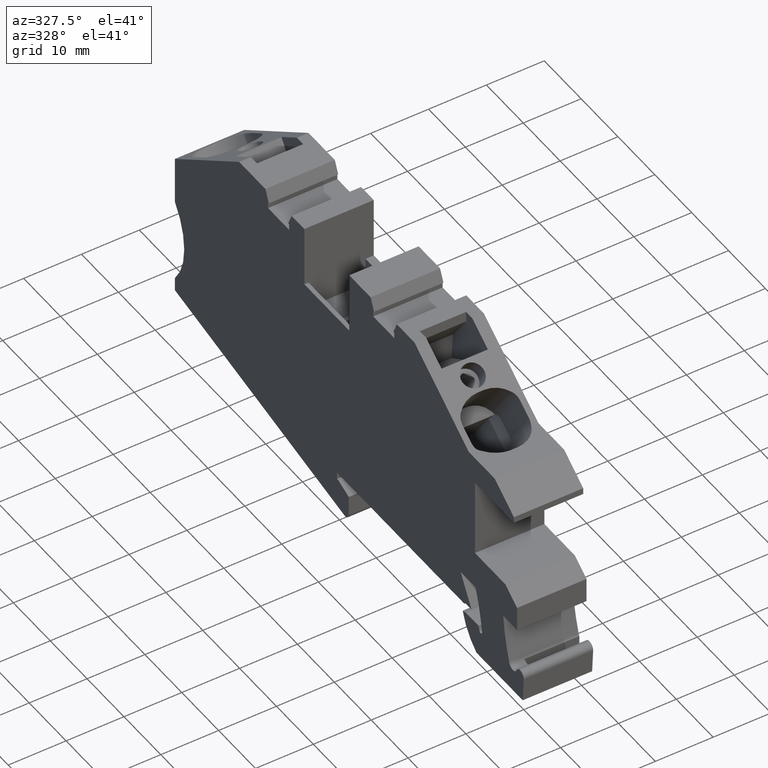
[diagram: clean part render]
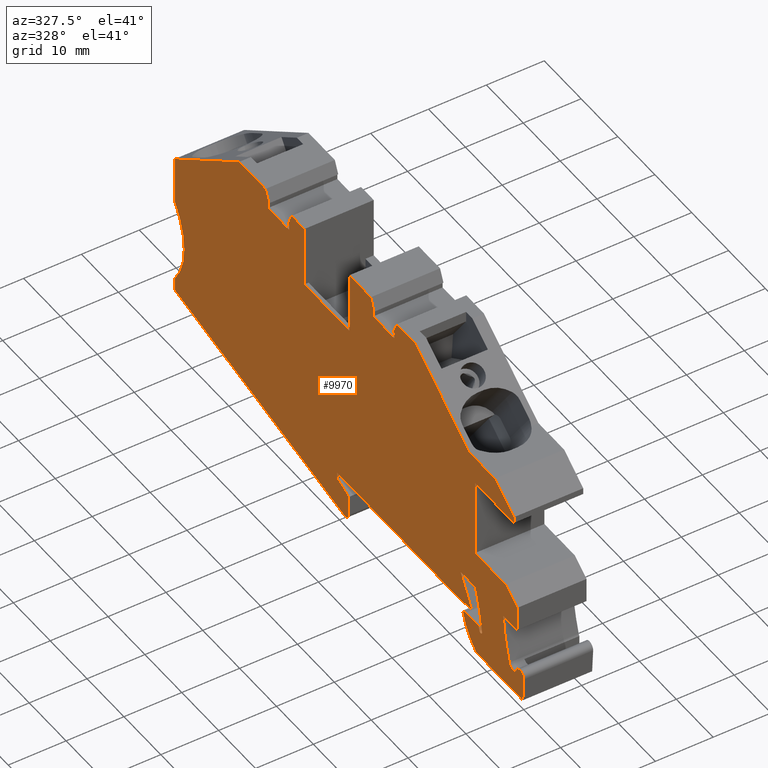
[diagram: same view with one face highlighted and labeled with its STEP entity id]
A machine part, auxiliary view. The second image highlights one B-rep face of the part: STEP entity #9970.
In plain terms, the highlighted planar face has unit normal (-1, -0, 0).
Its self-contained STEP definition (entity closure, byte-faithful):
#5150=CARTESIAN_POINT('',(38.203510143231,0.35328736142047,40.7));
#5160=DIRECTION('',(-8.51383783839635E-18,1.10420235744947E-16,-1.));
#5170=DIRECTION('',(-1.,8.35389237013017E-9,8.51383876083511E-18));
#5180=AXIS2_PLACEMENT_3D('',#5150,#5160,#5170);
#5190=PLANE('',#5180);
#5200=CARTESIAN_POINT('',(93.0449022402446,25.732308,40.7));
#5210=DIRECTION('',(8.35389237013017E-9,1.,1.10420235744946E-16));
#5220=VECTOR('',#5210,1.);
#5230=LINE('',#5200,#5220);
#5240=CARTESIAN_POINT('',(93.044902048957,2.83429066171187,40.7));
#5250=VERTEX_POINT('',#5240);
#5260=CARTESIAN_POINT('',(93.0449020682133,5.13936208983148,40.7));
#5270=VERTEX_POINT('',#5260);
#5280=EDGE_CURVE('',#5250,#5270,#5230,.T.);
#5290=ORIENTED_EDGE('',*,*,#5280,.F.);
#5300=CARTESIAN_POINT('',(102.498778289956,12.5301851051047,40.7));
#5310=DIRECTION('',(-8.51383783839635E-18,1.10420235744947E-16,-1.));
#5320=DIRECTION('',(-8.35389237013017E-9,-1.,-1.10420235673823E-16));
#5330=AXIS2_PLACEMENT_3D('',#5300,#5310,#5320);
#5340=CIRCLE('',#5330,12.);
#5350=CARTESIAN_POINT('',(93.0449021916976,19.9210028042074,40.7));
#5360=VERTEX_POINT('',#5350);
#5370=EDGE_CURVE('',#5270,#5360,#5340,.T.);
#5380=ORIENTED_EDGE('',*,*,#5370,.F.);
#5390=CARTESIAN_POINT('',(93.0449022402445,25.7323021918479,40.7));
#5400=DIRECTION('',(-8.35389248055041E-9,-1.,-1.10420235673823E-16));
#5410=VECTOR('',#5400,1.);
#5420=LINE('',#5390,#5410);
#5430=CARTESIAN_POINT('',(93.0449022606235,28.1717635470202,40.7));
#5440=VERTEX_POINT('',#5430);
#5450=EDGE_CURVE('',#5440,#5360,#5420,.T.);
#5460=ORIENTED_EDGE('',*,*,#5450,.T.);
#5470=CARTESIAN_POINT('',(59.0369233903868,51.9844071363389,40.7));
#5480=DIRECTION('',(-0.819152039478017,0.57357644322183,
7.84052243429085E-17));
#5490=VECTOR('',#5480,1.);
#5500=LINE('',#5470,#5490);
#5510=CARTESIAN_POINT('',(75.6008074156825,40.3862504727456,40.7));
#5520=VERTEX_POINT('',#5510);
#5530=EDGE_CURVE('',#5440,#5520,#5500,.T.);
#5540=ORIENTED_EDGE('',*,*,#5530,.F.);
#5550=CARTESIAN_POINT('',(59.036923293497,40.3862506111185,40.7));
#5560=DIRECTION('',(-1.,8.35389248055041E-9,8.51383876083512E-18));
#5570=VECTOR('',#5560,1.);
#5580=LINE('',#5550,#5570);
#5590=CARTESIAN_POINT('',(68.4677555117359,40.3862505323343,40.7));
#5600=VERTEX_POINT('',#5590);
#5610=EDGE_CURVE('',#5520,#5600,#5580,.T.);
#5620=ORIENTED_EDGE('',*,*,#5610,.F.);
#5630=CARTESIAN_POINT('',(61.9816675282634,25.7323024513468,40.7));
#5640=DIRECTION('',(-0.404742637322857,-0.914430641182227,
-7.74457874956567E-17));
#5650=VECTOR('',#5640,1.);
#5660=LINE('',#5630,#5650);
#5670=CARTESIAN_POINT('',(67.5384531054585,38.2866877068181,40.7));
#5680=VERTEX_POINT('',#5670);
#5690=EDGE_CURVE('',#5600,#5680,#5660,.T.);
#5700=ORIENTED_EDGE('',*,*,#5690,.F.);
#5710=CARTESIAN_POINT('',(59.0369232759575,38.286687777839,40.7));
#5720=DIRECTION('',(-1.,8.35388754622585E-9,8.51383876083461E-18));
#5730=VECTOR('',#5720,1.);
#5740=LINE('',#5710,#5730);
#5750=CARTESIAN_POINT('',(67.7702553451225,38.2866877048817,40.7));
#5760=VERTEX_POINT('',#5750);
#5770=EDGE_CURVE('',#5760,#5680,#5740,.T.);
#5780=ORIENTED_EDGE('',*,*,#5770,.T.);
#5790=CARTESIAN_POINT('',(67.7702552402446,25.7323024029895,40.7));
#5800=DIRECTION('',(-8.35389248055041E-9,-1.,-1.10420235673823E-16));
#5810=VECTOR('',#5800,1.);
#5820=LINE('',#5790,#5810);
#5830=CARTESIAN_POINT('',(67.7702553361384,37.2112501981611,40.7));
#5840=VERTEX_POINT('',#5830);
#5850=EDGE_CURVE('',#5760,#5840,#5820,.T.);
#5860=ORIENTED_EDGE('',*,*,#5850,.F.);
#5870=CARTESIAN_POINT('',(59.0369232669734,37.2112502711185,40.7));
#5880=DIRECTION('',(1.,-8.35389248055041E-9,-8.51383876083512E-18));
#5890=VECTOR('',#5880,1.);
#5900=LINE('',#5870,#5890);
#5910=CARTESIAN_POINT('',(62.0452553361384,37.2112502459872,40.7));
#5920=VERTEX_POINT('',#5910);
#5930=EDGE_CURVE('',#5920,#5840,#5900,.T.);
#5940=ORIENTED_EDGE('',*,*,#5930,.T.);
#5950=CARTESIAN_POINT('',(62.0452552402445,25.7323024508156,40.7));
#5960=DIRECTION('',(-8.35389248055041E-9,-1.,-1.10420235673823E-16));
#5970=VECTOR('',#5960,1.);
#5980=LINE('',#5950,#5970);
#5990=CARTESIAN_POINT('',(62.0452553451225,38.2866877527077,40.7));
#6000=VERTEX_POINT('',#5990);
#6010=EDGE_CURVE('',#6000,#5920,#5980,.T.);
#6020=ORIENTED_EDGE('',*,*,#6010,.T.);
#6030=CARTESIAN_POINT('',(59.0369232759575,38.286687777839,40.7));
#6040=DIRECTION('',(-1.,8.35389618129382E-9,8.51383876083564E-18));
#6050=VECTOR('',#6040,1.);
#6060=LINE('',#6030,#6050);
#6070=CARTESIAN_POINT('',(62.2770575894561,38.2866877507713,40.7));
#6080=VERTEX_POINT('',#6070);
#6090=EDGE_CURVE('',#6080,#6000,#6060,.T.);
#6100=ORIENTED_EDGE('',*,*,#6090,.T.);
#6110=CARTESIAN_POINT('',(67.8338429568952,25.7323024024583,40.7));
#6120=DIRECTION('',(-0.404742622044746,0.91443064794458,
5.65820388575564E-17));
#6130=VECTOR('',#6120,1.);
#6140=LINE('',#6110,#6130);
#6150=CARTESIAN_POINT('',(61.3477552182577,40.386250591814,40.7));
#6160=VERTEX_POINT('',#6150);
#6170=EDGE_CURVE('',#6080,#6160,#6140,.T.);
#6180=ORIENTED_EDGE('',*,*,#6170,.F.);
#6190=CARTESIAN_POINT('',(59.036923293497,40.3862506111185,40.7));
#6200=DIRECTION('',(-1.,8.35389248055041E-9,8.51383876083512E-18));
#6210=VECTOR('',#6200,1.);
#6220=LINE('',#6190,#6210);
#6230=CARTESIAN_POINT('',(57.9077553626642,40.3862506205514,40.7));
#6240=VERTEX_POINT('',#6230);
#6250=EDGE_CURVE('',#6160,#6240,#6220,.T.);
#6260=ORIENTED_EDGE('',*,*,#6250,.F.);
#6270=CARTESIAN_POINT('',(57.9077552402467,25.7323024853798,40.7));
#6280=DIRECTION('',(-8.35389248055041E-9,-1.,-1.10420235673823E-16));
#6290=VECTOR('',#6280,1.);
#6300=LINE('',#6270,#6290);
#6310=CARTESIAN_POINT('',(57.9077552734199,29.7032849309477,40.7));
#6320=VERTEX_POINT('',#6310);
#6330=EDGE_CURVE('',#6240,#6320,#6300,.T.);
#6340=ORIENTED_EDGE('',*,*,#6330,.F.);
#6350=CARTESIAN_POINT('',(59.0369232042527,29.7032849215148,40.7));
#6360=DIRECTION('',(-1.,8.35389248055041E-9,8.51383876083512E-18));
#6370=VECTOR('',#6360,1.);
#6380=LINE('',#6350,#6370);
#6390=CARTESIAN_POINT('',(45.7077552734199,29.7032850328652,40.7));
#6400=VERTEX_POINT('',#6390);
#6410=EDGE_CURVE('',#6320,#6400,#6380,.T.);
#6420=ORIENTED_EDGE('',*,*,#6410,.F.);
#6430=CARTESIAN_POINT('',(45.7077552402467,25.7323025872973,40.7));
#6440=DIRECTION('',(-8.35389248055041E-9,-1.,-1.10420235673823E-16));
#6450=VECTOR('',#6440,1.);
#6460=LINE('',#6430,#6450);
#6470=CARTESIAN_POINT('',(45.7077553626954,40.38998509679,40.7));
#6480=VERTEX_POINT('',#6470);
#6490=EDGE_CURVE('',#6480,#6400,#6460,.T.);
#6500=ORIENTED_EDGE('',*,*,#6490,.T.);
#6510=CARTESIAN_POINT('',(59.036923293553,40.39295746486,40.7));
#6520=DIRECTION('',(-0.99999997513611,-0.00022299726521536,
8.48054384528818E-18));
#6530=VECTOR('',#6520,1.);
#6540=LINE('',#6510,#6530);
#6550=CARTESIAN_POINT('',(39.9173812333129,40.3886938591624,40.7));
#6560=VERTEX_POINT('',#6550);
#6570=EDGE_CURVE('',#6480,#6560,#6540,.T.);
#6580=ORIENTED_EDGE('',*,*,#6570,.F.);
#6590=CARTESIAN_POINT('',(33.4302118971798,25.7323026898626,40.7));
#6600=DIRECTION('',(-0.404742637322857,-0.914430641182227,
-7.74457874956567E-17));
#6610=VECTOR('',#6600,1.);
#6620=LINE('',#6590,#6610);
#6630=CARTESIAN_POINT('',(38.9869974743749,38.2866879453339,40.7));
#6640=VERTEX_POINT('',#6630);
#6650=EDGE_CURVE('',#6560,#6640,#6620,.T.);
#6660=ORIENTED_EDGE('',*,*,#6650,.F.);
#6670=CARTESIAN_POINT('',(59.0369232759575,38.2866877778389,40.7));
#6680=DIRECTION('',(-1.,8.35389614314183E-9,8.51383876083564E-18));
#6690=VECTOR('',#6680,1.);
#6700=LINE('',#6670,#6690);
#6710=CARTESIAN_POINT('',(39.2202553481225,38.2866879433853,40.7));
#6720=VERTEX_POINT('',#6710);
#6730=EDGE_CURVE('',#6720,#6640,#6700,.T.);
#6740=ORIENTED_EDGE('',*,*,#6730,.T.);
#6750=CARTESIAN_POINT('',(39.2202552432446,25.7323026414932,40.7));
#6760=DIRECTION('',(-8.35389248055041E-9,-1.,-1.10420235673823E-16));
#6770=VECTOR('',#6760,1.);
#6780=LINE('',#6750,#6770);
#6790=CARTESIAN_POINT('',(39.2202553391659,37.2145391366648,40.7));
#6800=VERTEX_POINT('',#6790);
#6810=EDGE_CURVE('',#6720,#6800,#6780,.T.);
#6820=ORIENTED_EDGE('',*,*,#6810,.F.);
#6830=CARTESIAN_POINT('',(59.0369232670009,37.2145389711185,40.7));
#6840=DIRECTION('',(1.,-8.35389248055041E-9,-8.51383876083512E-18));
#6850=VECTOR('',#6840,1.);
#6860=LINE('',#6830,#6850);
#6870=CARTESIAN_POINT('',(33.4952553391659,37.2145391844908,40.7));
#6880=VERTEX_POINT('',#6870);
#6890=EDGE_CURVE('',#6880,#6800,#6860,.T.);
#6900=ORIENTED_EDGE('',*,*,#6890,.T.);
#6910=CARTESIAN_POINT('',(33.4952552432445,25.7323026893192,40.7));
#6920=DIRECTION('',(-8.35389248055041E-9,-1.,-1.10420235673823E-16));
#6930=VECTOR('',#6920,1.);
#6940=LINE('',#6910,#6930);
#6950=CARTESIAN_POINT('',(33.4952553481225,38.2866879912114,40.7));
#6960=VERTEX_POINT('',#6950);
#6970=EDGE_CURVE('',#6960,#6880,#6940,.T.);
#6980=ORIENTED_EDGE('',*,*,#6970,.T.);
#6990=CARTESIAN_POINT('',(59.0369232759575,38.2866877778391,40.7));
#7000=DIRECTION('',(-1.,8.35388892783673E-9,8.51383876083485E-18));
#7010=VECTOR('',#7000,1.);
#7020=LINE('',#6990,#7010);
#7030=CARTESIAN_POINT('',(33.7285132201678,38.2866879892628,40.7));
#7040=VERTEX_POINT('',#7030);
#7050=EDGE_CURVE('',#7040,#6960,#7020,.T.);
#7060=ORIENTED_EDGE('',*,*,#7050,.T.);
#7070=CARTESIAN_POINT('',(39.2852985876069,25.7323026409498,40.7));
#7080=DIRECTION('',(-0.404742622044747,0.91443064794458,
8.43376144731853E-17));
#7090=VECTOR('',#7080,1.);
#7100=LINE('',#7070,#7090);
#7110=CARTESIAN_POINT('',(32.7988321405574,40.387106442143,40.7));
#7120=VERTEX_POINT('',#7110);
#7130=EDGE_CURVE('',#7040,#7120,#7100,.T.);
#7140=ORIENTED_EDGE('',*,*,#7130,.F.);
#7150=CARTESIAN_POINT('',(59.036923293553,40.39295746486,40.7));
#7160=DIRECTION('',(-0.99999997513611,-0.000222997265215238,
8.48054384528818E-18));
#7170=VECTOR('',#7160,1.);
#7180=LINE('',#7150,#7170);
#7190=CARTESIAN_POINT('',(28.014402209536,40.3860395273262,40.7));
#7200=VERTEX_POINT('',#7190);
#7210=EDGE_CURVE('',#7120,#7200,#7180,.T.);
#7220=ORIENTED_EDGE('',*,*,#7210,.F.);
#7230=CARTESIAN_POINT('',(59.0369234749602,62.1082423869873,40.7));
#7240=DIRECTION('',(-0.819152049061208,-0.573576429535615,
-9.22125431074975E-17));
#7250=VECTOR('',#7240,1.);
#7260=LINE('',#7230,#7250);
#7270=CARTESIAN_POINT('',(13.2576992566291,30.0532850635532,40.7));
#7280=VERTEX_POINT('',#7270);
#7290=EDGE_CURVE('',#7200,#7280,#7260,.T.);
#7300=ORIENTED_EDGE('',*,*,#7290,.F.);
#7310=CARTESIAN_POINT('',(59.0369232071765,30.0532846811185,40.7));
#7320=DIRECTION('',(-1.,8.35389248055041E-9,8.51383876083512E-18));
#7330=VECTOR('',#7320,1.);
#7340=LINE('',#7310,#7330);
#7350=CARTESIAN_POINT('',(6.25893621264501,30.0532851220201,40.7));
#7360=VERTEX_POINT('',#7350);
#7370=EDGE_CURVE('',#7280,#7360,#7340,.T.);
#7380=ORIENTED_EDGE('',*,*,#7370,.F.);
#7390=CARTESIAN_POINT('',(59.0369235158992,67.0088283677211,40.7));
#7400=DIRECTION('',(-0.819152053882617,-0.573576422649929,
-9.22125428753326E-17));
#7410=VECTOR('',#7400,1.);
#7420=LINE('',#7390,#7410);
#7430=CARTESIAN_POINT('',(1.04490266709101,26.4023796589128,40.7));
#7440=VERTEX_POINT('',#7430);
#7450=EDGE_CURVE('',#7360,#7440,#7420,.T.);
#7460=ORIENTED_EDGE('',*,*,#7450,.F.);
#7470=CARTESIAN_POINT('',(1.04490266149283,25.732302960406,40.7));
#7480=DIRECTION('',(-8.35463096732498E-9,-1.,-1.10420235673788E-16));
#7490=VECTOR('',#7480,1.);
#7500=LINE('',#7470,#7490);
#7510=CARTESIAN_POINT('',(1.04490265790852,25.3032857555777,40.7));
#7520=VERTEX_POINT('',#7510);
#7530=EDGE_CURVE('',#7440,#7520,#7500,.T.);
#7540=ORIENTED_EDGE('',*,*,#7530,.F.);
#7550=CARTESIAN_POINT('',(59.0369231674955,25.3032852711179,40.7));
#7560=DIRECTION('',(1.,-8.35390378512144E-9,-8.51383876083624E-18));
#7570=VECTOR('',#7560,1.);
#7580=LINE('',#7550,#7570);
#7590=CARTESIAN_POINT('',(11.6016160166606,25.3032856673879,40.7));
#7600=VERTEX_POINT('',#7590);
#7610=EDGE_CURVE('',#7520,#7600,#7580,.T.);
#7620=ORIENTED_EDGE('',*,*,#7610,.F.);
#7630=CARTESIAN_POINT('',(11.6016160202445,25.7323028722163,40.7));
#7640=DIRECTION('',(-8.35389248055041E-9,-1.,-1.10420235673823E-16));
#7650=VECTOR('',#7640,1.);
#7660=LINE('',#7630,#7650);
#7670=CARTESIAN_POINT('',(11.60161590344,11.7502576173879,40.7));
#7680=VERTEX_POINT('',#7670);
#7690=EDGE_CURVE('',#7600,#7680,#7660,.T.);
#7700=ORIENTED_EDGE('',*,*,#7690,.F.);
#7710=CARTESIAN_POINT('',(59.036923054275,11.7502572211185,40.7));
#7720=DIRECTION('',(-1.,8.35389248055041E-9,8.51383876083512E-18));
#7730=VECTOR('',#7720,1.);
#7740=LINE('',#7710,#7730);
#7750=CARTESIAN_POINT('',(3.33903798081744,11.7502576864126,40.7));
#7760=VERTEX_POINT('',#7750);
#7770=EDGE_CURVE('',#7680,#7760,#7740,.T.);
#7780=ORIENTED_EDGE('',*,*,#7770,.F.);
#7790=CARTESIAN_POINT('',(59.0369233800775,50.750336214696,40.7));
#7800=DIRECTION('',(-0.819152049061208,-0.573576429535615,
-9.22125431074975E-17));
#7810=VECTOR('',#7800,1.);
#7820=LINE('',#7790,#7810);
#7830=CARTESIAN_POINT('',(0.163827634866756,9.52695150614708,40.7));
#7840=VERTEX_POINT('',#7830);
#7850=EDGE_CURVE('',#7760,#7840,#7820,.T.);
#7860=ORIENTED_EDGE('',*,*,#7850,.F.);
#7870=CARTESIAN_POINT('',(0.163827770244545,25.7323029677664,40.7));
#7880=DIRECTION('',(-8.35389248055041E-9,-1.,-1.10420235673823E-16));
#7890=VECTOR('',#7880,1.);
#7900=LINE('',#7870,#7890);
#7910=CARTESIAN_POINT('',(0.163827599165053,5.25328790999988,40.7));
#7920=VERTEX_POINT('',#7910);
#7930=EDGE_CURVE('',#7840,#7920,#7900,.T.);
#7940=ORIENTED_EDGE('',*,*,#7930,.F.);
#7950=CARTESIAN_POINT('',(59.036923,5.25328741818037,40.7));
#7960=DIRECTION('',(1.,-8.35389237013017E-9,-8.51383876083512E-18));
#7970=VECTOR('',#7960,1.);
#7980=LINE('',#7950,#7970);
#7990=CARTESIAN_POINT('',(3.94644420618581,5.25328787840031,40.7));
#8000=VERTEX_POINT('',#7990);
#8010=EDGE_CURVE('',#7920,#8000,#7980,.T.);
#8020=ORIENTED_EDGE('',*,*,#8010,.F.);
#8030=CARTESIAN_POINT('',(-32.3049932514707,8.77026705724427,40.7));
#8040=DIRECTION('',(-8.51383783839635E-18,1.10420235744947E-16,-1.));
#8050=DIRECTION('',(-8.35389237013017E-9,-1.,-1.10420235673823E-16));
#8060=AXIS2_PLACEMENT_3D('',#8030,#8040,#8050);
#8070=CIRCLE('',#8060,36.4216400000165);
#8080=CARTESIAN_POINT('',(2.29555040933133,-2.60243001371195,40.7));
#8090=VERTEX_POINT('',#8080);
#8100=EDGE_CURVE('',#8000,#8090,#8070,.T.);
#8110=ORIENTED_EDGE('',*,*,#8100,.F.);
#8120=CARTESIAN_POINT('',(1.30650513625136,-2.27777433654591,40.7));
#8130=DIRECTION('',(-8.51383783839635E-18,1.10420235744947E-16,-1.));
#8140=DIRECTION('',(-8.35389237013017E-9,-1.,-1.10420235673823E-16));
#8150=AXIS2_PLACEMENT_3D('',#8120,#8130,#8140);
#8160=CIRCLE('',#8150,1.04096678600002);
#8170=CARTESIAN_POINT('',(0.317412838951839,-2.60228670078863,40.7));
#8180=VERTEX_POINT('',#8170);
#8190=EDGE_CURVE('',#8090,#8180,#8160,.T.);
#8200=ORIENTED_EDGE('',*,*,#8190,.F.);
#8210=CARTESIAN_POINT('',(-0.632754159063829,-2.91402806134557,40.7));
#8220=DIRECTION('',(8.51383783839635E-18,-1.10420235744947E-16,1.));
#8230=DIRECTION('',(8.35389237013017E-9,1.,1.10420235673823E-16));
#8240=AXIS2_PLACEMENT_3D('',#8210,#8220,#8230);
#8250=CIRCLE('',#8240,1.);
#8260=CARTESIAN_POINT('',(-1.63058215358199,-2.97990137427176,40.7));
#8270=VERTEX_POINT('',#8260);
#8280=EDGE_CURVE('',#8180,#8270,#8250,.T.);
#8290=ORIENTED_EDGE('',*,*,#8280,.F.);
#8300=CARTESIAN_POINT('',(-3.52606715370311,25.7323029985914,40.7));
#8310=DIRECTION('',(0.0658733121853598,-0.997827994567065,
-1.11522852946274E-16));
#8320=VECTOR('',#8310,1.);
#8330=LINE('',#8300,#8320);
#8340=CARTESIAN_POINT('',(-1.35220201571465,-7.19671512933542,40.7));
#8350=VERTEX_POINT('',#8340);
#8360=EDGE_CURVE('',#8270,#8350,#8330,.T.);
#8370=ORIENTED_EDGE('',*,*,#8360,.F.);
#8380=CARTESIAN_POINT('',(59.036922895994,-7.19671563381963,40.7));
#8390=DIRECTION('',(1.,-8.35389237013017E-9,-8.51383876083512E-18));
#8400=VECTOR('',#8390,1.);
#8410=LINE('',#8380,#8400);
#8420=CARTESIAN_POINT('',(11.2163273523498,-7.19671523433152,40.7));
#8430=VERTEX_POINT('',#8420);
#8440=EDGE_CURVE('',#8350,#8430,#8410,.T.);
#8450=ORIENTED_EDGE('',*,*,#8440,.F.);
#8460=CARTESIAN_POINT('',(5.24019420293919,0.916888865592497,40.7));
#8470=DIRECTION('',(8.51383783839635E-18,-1.10420235744947E-16,1.));
#8480=DIRECTION('',(8.35389237013017E-9,1.,1.10420235673823E-16));
#8490=AXIS2_PLACEMENT_3D('',#8460,#8470,#8480);
#8500=CIRCLE('',#8490,10.0769409500001);
#8510=CARTESIAN_POINT('',(14.9362108230489,-1.82756018883433,40.7));
#8520=VERTEX_POINT('',#8510);
#8530=EDGE_CURVE('',#8430,#8520,#8500,.T.);
#8540=ORIENTED_EDGE('',*,*,#8530,.F.);
#8550=CARTESIAN_POINT('',(59.0369228421315,-13.6443107545996,40.7));
#8560=DIRECTION('',(-0.965925824128284,0.258819053166676,
4.31629841739158E-17));
#8570=VECTOR('',#8560,1.);
#8580=LINE('',#8550,#8570);
#8590=CARTESIAN_POINT('',(14.0746744518402,-1.59671220620984,40.7));
#8600=VERTEX_POINT('',#8590);
#8610=EDGE_CURVE('',#8520,#8600,#8580,.T.);
#8620=ORIENTED_EDGE('',*,*,#8610,.F.);
#8630=CARTESIAN_POINT('',(59.0369229427758,-1.59671258181963,40.7));
#8640=DIRECTION('',(-1.,8.35389237013017E-9,8.51383876083512E-18));
#8650=VECTOR('',#8640,1.);
#8660=LINE('',#8630,#8650);
#8670=CARTESIAN_POINT('',(10.634409433341,-1.59671217747024,40.7));
#8680=VERTEX_POINT('',#8670);
#8690=EDGE_CURVE('',#8600,#8680,#8660,.T.);
#8700=ORIENTED_EDGE('',*,*,#8690,.F.);
#8710=CARTESIAN_POINT('',(-22.8734298446946,8.51391129479872,40.7));
#8720=DIRECTION('',(-8.51383783839635E-18,1.10420235744947E-16,-1.));
#8730=DIRECTION('',(-8.35389237013017E-9,-1.,-1.10420235673823E-16));
#8740=AXIS2_PLACEMENT_3D('',#8710,#8720,#8730);
#8750=CIRCLE('',#8740,35.0000000011523);
#8760=CARTESIAN_POINT('',(10.4017826878011,-2.33782732886977,40.7));
#8770=VERTEX_POINT('',#8760);
#8780=EDGE_CURVE('',#8680,#8770,#8750,.T.);
#8790=ORIENTED_EDGE('',*,*,#8780,.F.);
#8800=CARTESIAN_POINT('',(10.0450510767216,-2.22148973354679,40.7));
#8810=DIRECTION('',(-8.51383783839635E-18,1.10420235744947E-16,-1.));
#8820=DIRECTION('',(-8.35389237013017E-9,-1.,-1.10420235673823E-16));
#8830=AXIS2_PLACEMENT_3D('',#8800,#8810,#8820);
#8840=CIRCLE('',#8830,0.375222438600003);
#8850=CARTESIAN_POINT('',(9.6728471566905,-2.17399109838285,40.7));
#8860=VERTEX_POINT('',#8850);
#8870=EDGE_CURVE('',#8770,#8860,#8840,.T.);
#8880=ORIENTED_EDGE('',*,*,#8870,.F.);
#8890=CARTESIAN_POINT('',(44.3912857611087,-6.60456903247223,40.7));
#8900=DIRECTION('',(-8.51383783839635E-18,1.10420235744947E-16,-1.));
#8910=DIRECTION('',(-8.35389237013017E-9,-1.,-1.10420235673823E-16));
#8920=AXIS2_PLACEMENT_3D('',#8890,#8900,#8910);
#8930=CIRCLE('',#8920,35.000000000003);
#8940=CARTESIAN_POINT('',(11.4611695631674,5.2532320786231,40.7));
#8950=VERTEX_POINT('',#8940);
#8960=EDGE_CURVE('',#8860,#8950,#8930,.T.);
#8970=ORIENTED_EDGE('',*,*,#8960,.F.);
#8980=CARTESIAN_POINT('',(59.0369229999995,5.25323168118037,40.7));
#8990=DIRECTION('',(1.,-8.35389237013017E-9,-8.51383876083512E-18));
#9000=VECTOR('',#8990,1.);
#9010=LINE('',#8980,#9000);
#9020=CARTESIAN_POINT('',(15.5013167428285,5.25323204487214,40.7));
#9030=VERTEX_POINT('',#9020);
#9040=EDGE_CURVE('',#8950,#9030,#9010,.T.);
#9050=ORIENTED_EDGE('',*,*,#9040,.F.);
#9060=CARTESIAN_POINT('',(27.3249139498078,25.7323027408656,40.7));
#9070=DIRECTION('',(-0.500000007227945,-0.866025399611383,
-7.52912662383961E-17));
#9080=VECTOR('',#9070,1.);
#9090=LINE('',#9060,#9080);
#9100=CARTESIAN_POINT('',(12.5568625071819,0.153287806469791,40.7));
#9110=VERTEX_POINT('',#9100);
#9120=EDGE_CURVE('',#9030,#9110,#9090,.T.);
#9130=ORIENTED_EDGE('',*,*,#9120,.F.);
#9140=CARTESIAN_POINT('',(59.0369229573951,0.153287418180369,40.7));
#9150=DIRECTION('',(1.,-8.35389237013017E-9,-8.51383876083512E-18));
#9160=VECTOR('',#9150,1.);
#9170=LINE('',#9140,#9160);
#9180=CARTESIAN_POINT('',(14.0949012665602,0.153287793621182,40.7));
#9190=VERTEX_POINT('',#9180);
#9200=EDGE_CURVE('',#9110,#9190,#9170,.T.);
#9210=ORIENTED_EDGE('',*,*,#9200,.F.);
#9220=CARTESIAN_POINT('',(14.094902024054,-0.146712206378844,40.7));
#9230=DIRECTION('',(-8.51383783839635E-18,1.10420235744947E-16,-1.));
#9240=DIRECTION('',(-8.35389237013017E-9,-1.,-1.10420235673823E-16));
#9250=AXIS2_PLACEMENT_3D('',#9220,#9230,#9240);
#9260=CIRCLE('',#9250,0.300000000000023);
#9270=CARTESIAN_POINT('',(14.354709495493,0.00328806085812516,40.7));
#9280=VERTEX_POINT('',#9270);
#9290=EDGE_CURVE('',#9190,#9280,#9260,.T.);
#9300=ORIENTED_EDGE('',*,*,#9290,.F.);
#9310=CARTESIAN_POINT('',(14.6145174065602,0.153287558680343,40.7));
#9320=DIRECTION('',(8.51383783839635E-18,-1.10420235744947E-16,1.));
#9330=DIRECTION('',(8.35389237013017E-9,1.,1.10420235673823E-16));
#9340=AXIS2_PLACEMENT_3D('',#9310,#9320,#9330);
#9350=CIRCLE('',#9340,0.29999999999997);
#9360=CARTESIAN_POINT('',(14.614517404054,-0.146712441319632,40.7));
#9370=VERTEX_POINT('',#9360);
#9380=EDGE_CURVE('',#9280,#9370,#9350,.T.);
#9390=ORIENTED_EDGE('',*,*,#9380,.F.);
#9400=CARTESIAN_POINT('',(36.244902024054,-0.146712622017539,40.7));
#9410=DIRECTION('',(1.,-8.35389237013017E-9,-8.51383876083511E-18));
#9420=VECTOR('',#9410,1.);
#9430=LINE('',#9400,#9420);
#9440=CARTESIAN_POINT('',(49.044900084054,-0.146712728947342,40.7));
#9450=VERTEX_POINT('',#9440);
#9460=EDGE_CURVE('',#9370,#9450,#9430,.T.);
#9470=ORIENTED_EDGE('',*,*,#9460,.F.);
#9480=CARTESIAN_POINT('',(49.0449000815479,-0.446712498347342,40.7));
#9490=DIRECTION('',(-8.35389237013017E-9,-1.,-1.10420235673823E-16));
#9500=VECTOR('',#9490,1.);
#9510=LINE('',#9480,#9500);
#9520=CARTESIAN_POINT('',(49.0449000737787,-1.37671555014735,40.7));
#9530=VERTEX_POINT('',#9520);
#9540=EDGE_CURVE('',#9450,#9530,#9510,.T.);
#9550=ORIENTED_EDGE('',*,*,#9540,.F.);
#9560=CARTESIAN_POINT('',(36.2449020137787,-1.37671544321754,40.7));
#9570=DIRECTION('',(-1.,8.35389237013017E-9,8.51383876083511E-18));
#9580=VECTOR('',#9570,1.);
#9590=LINE('',#9560,#9580);
#9600=CARTESIAN_POINT('',(48.6502014188425,-1.37671554685008,40.7));
#9610=VERTEX_POINT('',#9600);
#9620=EDGE_CURVE('',#9530,#9610,#9590,.T.);
#9630=ORIENTED_EDGE('',*,*,#9620,.F.);
#9640=CARTESIAN_POINT('',(59.0369229805548,2.92560529139241,40.7));
#9650=DIRECTION('',(-0.923879535694188,-0.382683424680888,
-3.05114135431711E-17));
#9660=VECTOR('',#9650,1.);
#9670=LINE('',#9640,#9660);
#9680=CARTESIAN_POINT('',(45.8449000650715,-2.53870938678977,40.7));
#9690=VERTEX_POINT('',#9680);
#9700=EDGE_CURVE('',#9610,#9690,#9670,.T.);
#9710=ORIENTED_EDGE('',*,*,#9700,.F.);
#9720=CARTESIAN_POINT('',(45.8449003012445,25.7323025861516,40.7));
#9730=DIRECTION('',(-8.35389237013017E-9,-1.,-1.10420235673823E-16));
#9740=VECTOR('',#9730,1.);
#9750=LINE('',#9720,#9740);
#9760=CARTESIAN_POINT('',(45.8449000364613,-5.9634878506149,40.7));
#9770=VERTEX_POINT('',#9760);
#9780=EDGE_CURVE('',#9690,#9770,#9750,.T.);
#9790=ORIENTED_EDGE('',*,*,#9780,.F.);
#9800=CARTESIAN_POINT('',(46.8449000354613,-5.96348785896878,40.7));
#9810=DIRECTION('',(8.51383783839635E-18,-1.10420235744947E-16,1.));
#9820=DIRECTION('',(8.35389237013017E-9,1.,1.10420235673823E-16));
#9830=AXIS2_PLACEMENT_3D('',#9800,#9810,#9820);
#9840=CIRCLE('',#9830,0.999999999999999);
#9850=CARTESIAN_POINT('',(47.0561451918329,-6.94092096927723,40.7));
#9860=VERTEX_POINT('',#9850);
#9870=EDGE_CURVE('',#9770,#9860,#9840,.T.);
#9880=ORIENTED_EDGE('',*,*,#9870,.F.);
#9890=CARTESIAN_POINT('',(59.036923,-4.39432813697829,40.7));
#9900=DIRECTION('',(0.978147602472828,0.207911682636303,
2.77555756156289E-17));
#9910=VECTOR('',#9900,1.);
#9920=LINE('',#9890,#9910);
#9930=EDGE_CURVE('',#9860,#5250,#9920,.T.);
#9940=ORIENTED_EDGE('',*,*,#9930,.F.);
#9950=EDGE_LOOP('',(#9940,#9880,#9790,#9710,#9630,#9550,#9470,#9390,
#9300,#9210,#9130,#9050,#8970,#8880,#8790,#8700,#8620,#8540,#8450,#8370,
#8290,#8200,#8110,#8020,#7940,#7860,#7780,#7700,#7620,#7540,#7460,#7380,
#7300,#7220,#7140,#7060,#6980,#6900,#6820,#6740,#6660,#6580,#6500,#6420,
#6340,#6260,#6180,#6100,#6020,#5940,#5860,#5780,#5700,#5620,#5540,#5460,
#5380,#5290));
#9960=FACE_OUTER_BOUND('',#9950,.T.);
#9970=ADVANCED_FACE('',(#9960),#5190,.T.);